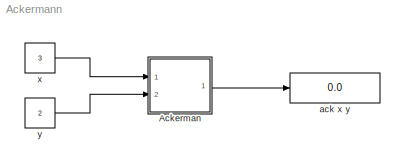
MODEL Ackermann
KIND model
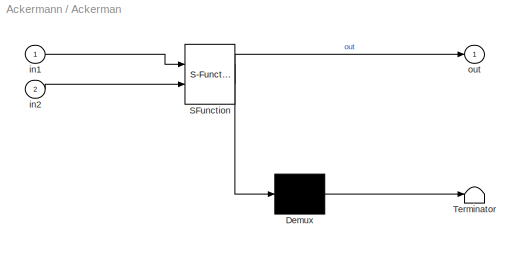
BLOCK [SubSystem] Ackerman
  ErrorFcn = Stateflow.Translate.translate
  PermitHierarchicalResolution = ExplicitOnly
  Ports = [2, 1]
  RequestExecContextInheritance = off
  SFBlockType = Chart
  SID = 1
  TreatAsAtomicUnit = on
BLOCK [Demux] Ackerman/ Demux 
  Outputs = 1
  Ports = [1, 1]
  SID = 1::8
BLOCK [S-Function] Ackerman/ SFunction 
  EnableBusSupport = on
  FunctionName = sf_sfun
  PortCounts = [2 2]
  Ports = [2, 2]
  SID = 1::7
  Tag = Stateflow S-Function Ackermann 1
BLOCK [Terminator] Ackerman/ Terminator 
  SID = 1::9
BLOCK [Inport] Ackerman/in1
  IconDisplay = Port number
  SID = 1::1
BLOCK [Inport] Ackerman/in2
  IconDisplay = Port number
  Port = 2
  SID = 1::2
BLOCK [Outport] Ackerman/out
  IconDisplay = Port number
  SID = 1::6
BLOCK [Display] ack x y
  Decimation = 1
  Ports = [1]
  SID = 2
BLOCK [Constant] x
  SID = 3
  Value = 3
BLOCK [Constant] y
  SID = 4
  Value = 2
LINE Ackerman/ Demux :1 -> Ackerman/ Terminator :1
LINE Ackerman/ SFunction :1 -> Ackerman/ Demux :1
LINE Ackerman/ SFunction :2 -> Ackerman/out:1
LINE Ackerman/in1:1 -> Ackerman/ SFunction :1
LINE Ackerman/in2:1 -> Ackerman/ SFunction :2
LINE Ackerman:1 -> ack x y:1
LINE x:1 -> Ackerman:1
LINE y:1 -> Ackerman:2
CHART Ackerman states=3 transitions=16
  STATE_LABEL 'A/\\nentry:\\nx[1]=in1;\\ny[1]=in2;\\nmode[1]=1;\\nn=1;'
  STATE_LABEL 'B/\\nentry:\\nout=res[n+1];'
  STATE_LABEL 'C/\\nentry:\\nout=-1;'
